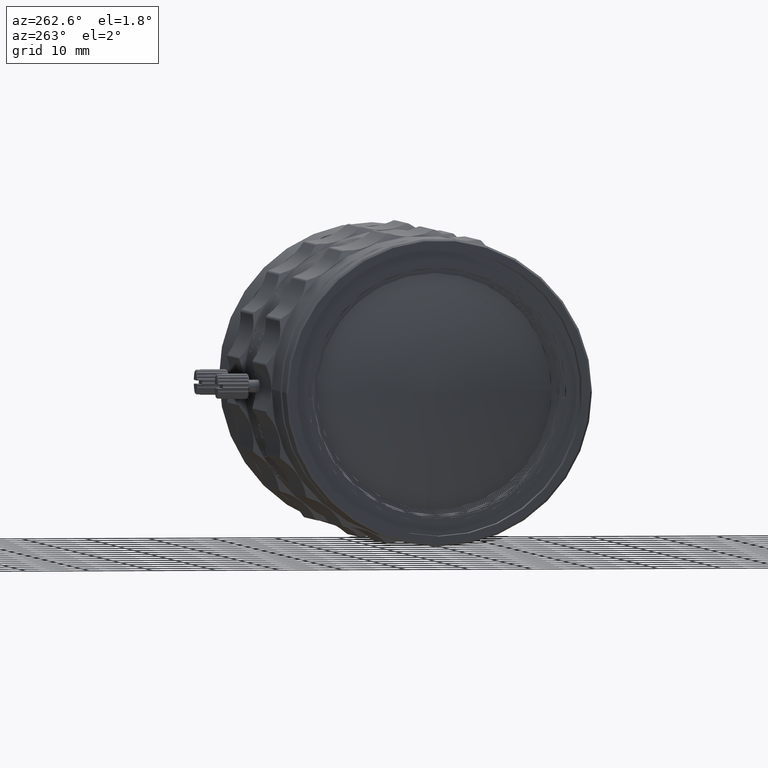
[diagram: clean part render]
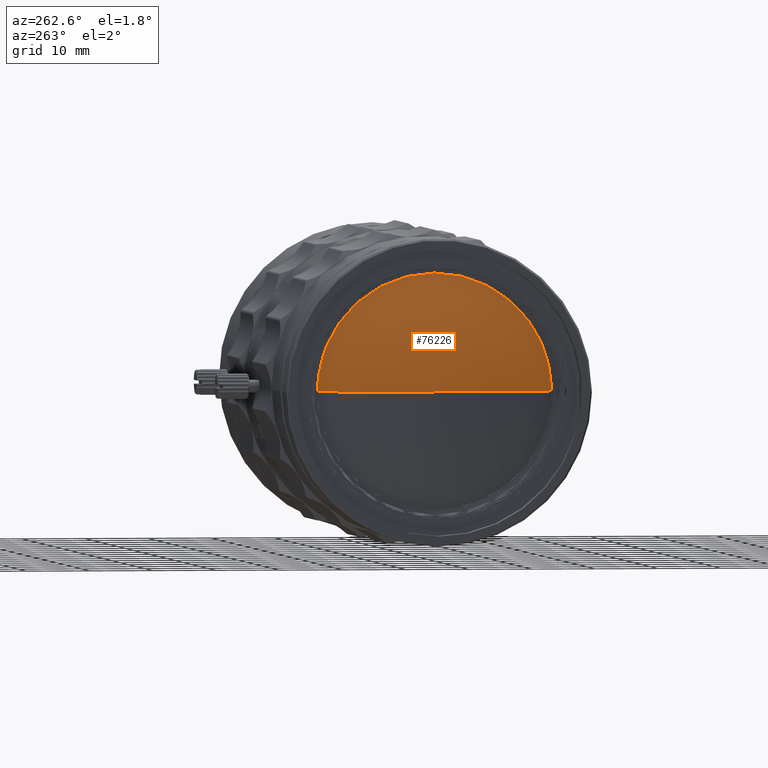
[diagram: same view with one face highlighted and labeled with its STEP entity id]
A machine part, auxiliary view. The second image highlights one B-rep face of the part: STEP entity #76226.
In plain terms, the highlighted spherical surface has radius 63.395 mm.
Its self-contained STEP definition (entity closure, byte-faithful):
#768 = VERTEX_POINT ( 'NONE', #79964 ) ;
#4356 = CARTESIAN_POINT ( 'NONE',  ( 1.860000000000000098, 18.59999999999999787, -4.035510154005925555E-15 ) ) ;
#6656 = CARTESIAN_POINT ( 'NONE',  ( 1.860000000000000098, -18.59999999999999787, 2.798018985236299972E-15 ) ) ;
#6881 = DIRECTION ( 'NONE',  ( 8.583053193997789333E-18, 1.224646799147350002E-16, 1.000000000000000000 ) ) ;
#7310 = CARTESIAN_POINT ( 'NONE',  ( 62.46499999999999631, 2.278846133210289421E-15, -1.059321524241170118E-29 ) ) ;
#7377 = CARTESIAN_POINT ( 'NONE',  ( 62.46499999999999631, 2.278846133210289421E-15, -1.059321524241170118E-29 ) ) ;
#9389 = EDGE_CURVE ( 'NONE', #66721, #768, #37843, .T. ) ;
#10489 = CIRCLE ( 'NONE', #61384, 63.39500000000001023 ) ;
#11614 = DIRECTION ( 'NONE',  ( 0.000000000000000000, -1.000000000000000000, 0.000000000000000000 ) ) ;
#20908 = AXIS2_PLACEMENT_3D ( 'NONE', #29944, #77309, #42800 ) ;
#26424 = FACE_OUTER_BOUND ( 'NONE', #28118, .T. ) ;
#28118 = EDGE_LOOP ( 'NONE', ( #86520, #41818, #82986 ) ) ;
#29206 = EDGE_CURVE ( 'NONE', #68073, #66721, #10489, .T. ) ;
#29944 = CARTESIAN_POINT ( 'NONE',  ( 1.860000000000000098, 0.000000000000000000, 0.000000000000000000 ) ) ;
#31495 = CARTESIAN_POINT ( 'NONE',  ( 1.860000000000000098, 0.000000000000000000, 0.000000000000000000 ) ) ;
#37843 = CIRCLE ( 'NONE', #20908, 18.59999999999999787 ) ;
#39400 = EDGE_CURVE ( 'NONE', #768, #68073, #42621, .T. ) ;
#41006 = SPHERICAL_SURFACE ( 'NONE', #81173, 63.39500000000001023 ) ;
#41818 = ORIENTED_EDGE ( 'NONE', *, *, #29206, .T. ) ;
#42621 = CIRCLE ( 'NONE', #84968, 18.59999999999999787 ) ;
#42800 = DIRECTION ( 'NONE',  ( 0.000000000000000000, -1.000000000000000000, 0.000000000000000000 ) ) ;
#46360 = DIRECTION ( 'NONE',  ( 0.000000000000000000, -1.000000000000000000, 1.224646799147350002E-16 ) ) ;
#61384 = AXIS2_PLACEMENT_3D ( 'NONE', #7310, #6881, #74139 ) ;
#66721 = VERTEX_POINT ( 'NONE', #6656 ) ;
#68073 = VERTEX_POINT ( 'NONE', #4356 ) ;
#74139 = DIRECTION ( 'NONE',  ( 0.000000000000000000, -1.000000000000000000, 1.224646799147349756E-16 ) ) ;
#76226 = ADVANCED_FACE ( 'NONE', ( #26424 ), #41006, .T. ) ;
#77309 = DIRECTION ( 'NONE',  ( -1.000000000000000000, 0.000000000000000000, 0.000000000000000000 ) ) ;
#79964 = CARTESIAN_POINT ( 'NONE',  ( 1.860000000000000098, 0.000000000000000000, 18.59999999999999787 ) ) ;
#81173 = AXIS2_PLACEMENT_3D ( 'NONE', #7377, #86576, #46360 ) ;
#82986 = ORIENTED_EDGE ( 'NONE', *, *, #9389, .T. ) ;
#84968 = AXIS2_PLACEMENT_3D ( 'NONE', #31495, #85922, #11614 ) ;
#85922 = DIRECTION ( 'NONE',  ( -1.000000000000000000, 0.000000000000000000, 0.000000000000000000 ) ) ;
#86520 = ORIENTED_EDGE ( 'NONE', *, *, #39400, .T. ) ;
#86576 = DIRECTION ( 'NONE',  ( -1.000000000000000000, 1.051120862094083162E-33, 8.583053193997789333E-18 ) ) ;